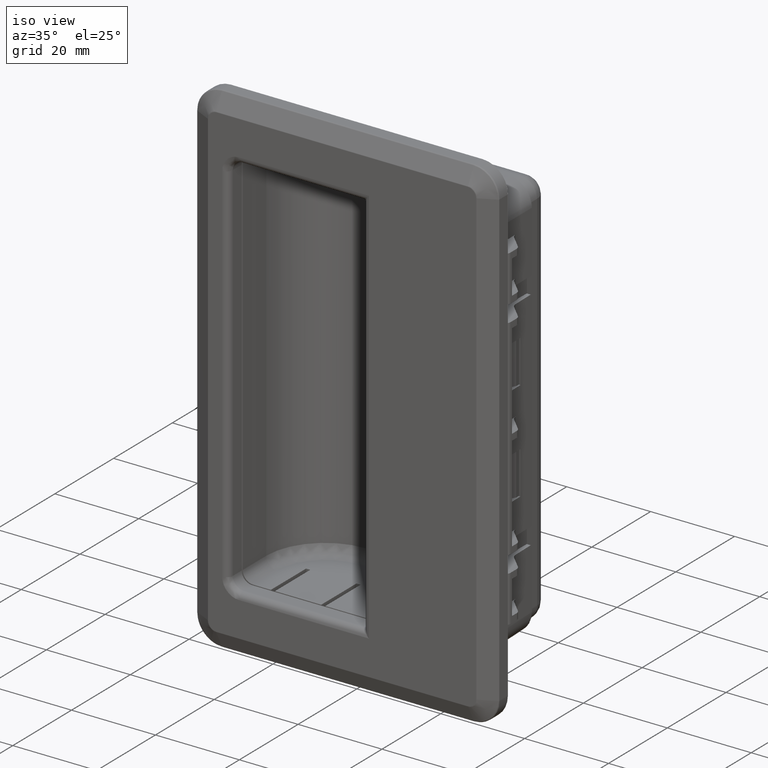
[diagram: clean part render]
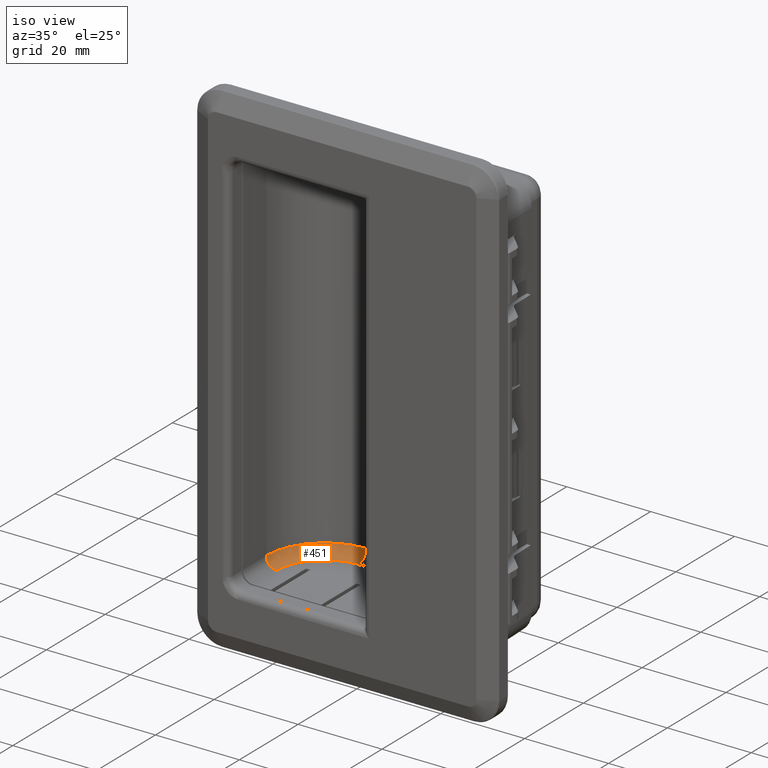
[diagram: same view with one face highlighted and labeled with its STEP entity id]
A machine part, iso view. The second image highlights one B-rep face of the part: STEP entity #451.
In plain terms, the highlighted face is a freeform B-spline surface patch.
Its self-contained STEP definition (entity closure, byte-faithful):
#451=ADVANCED_FACE('',(#5157),#5156,.F.);
#5156=( BOUNDED_SURFACE() B_SPLINE_SURFACE( 2,2,((#13050,#13051,#13052,#13053,#13054),(#13055,#13056,#13057,#13058,#13059),(#13060,#13061,#13062,#13063,#13064),(#13065,#13066,#13067,#13068,#13069),(#13070,#13071,#13072,#13073,#13074),(#13075,#13076,#13077,#13078,#13079),(#13080,#13081,#13082,#13083,#13084)), .UNSPECIFIED.,.T.,.F.,.F.) B_SPLINE_SURFACE_WITH_KNOTS((3,2,2,3),(3,2,3),(0.00000000000E+000,3.33333333333E-001,6.66666666667E-001,1.00000000000E+000),(0.00000000000E+000,5.00000000000E-001,1.00000000000E+000), .UNSPECIFIED. ) GEOMETRIC_REPRESENTATION_ITEM() RATIONAL_B_SPLINE_SURFACE(((1.00000000000E+000,7.07106781187E-001,1.00000000000E+000,7.07106781187E-001,1.00000000000E+000),(5.00000000000E-001,3.53553390593E-001,5.00000000000E-001,3.53553390593E-001,5.00000000000E-001),(1.00000000000E+000,7.07106781187E-001,1.00000000000E+000,7.07106781187E-001,1.00000000000E+000),(5.00000000000E-001,3.53553390593E-001,5.00000000000E-001,3.53553390593E-001,5.00000000000E-001),(1.00000000000E+000,7.07106781187E-001,1.00000000000E+000,7.07106781187E-001,1.00000000000E+000),(5.00000000000E-001,3.53553390593E-001,5.00000000000E-001,3.53553390593E-001,5.00000000000E-001),(1.00000000000E+000,7.07106781187E-001,1.00000000000E+000,7.07106781187E-001,1.00000000000E+000))) REPRESENTATION_ITEM('') SURFACE() );
#5157=FACE_OUTER_BOUND('',#13085,.T.);
#13050=CARTESIAN_POINT('',(8.00000000176E-001,8.00000000000E+000,-4.37999999999E+001));
#13051=CARTESIAN_POINT('',(8.00000000176E-001,8.00000000000E+000,-4.62999999999E+001));
#13052=CARTESIAN_POINT('',(-1.69999999982E+000,8.00000000000E+000,-4.62999999999E+001));
#13053=CARTESIAN_POINT('',(-4.19999999982E+000,8.00000000000E+000,-4.62999999999E+001));
#13054=CARTESIAN_POINT('',(-4.19999999982E+000,8.00000000000E+000,-4.37999999999E+001));
#13055=CARTESIAN_POINT('',(8.00000000176E-001,-1.62487113060E+001,-4.37999999999E+001));
#13056=CARTESIAN_POINT('',(8.00000000176E-001,-1.62487113060E+001,-4.62999999999E+001));
#13057=CARTESIAN_POINT('',(-1.69999999982E+000,-1.19185842870E+001,-4.62999999999E+001));
#13058=CARTESIAN_POINT('',(-4.19999999982E+000,-7.58845726812E+000,-4.62999999999E+001));
#13059=CARTESIAN_POINT('',(-4.19999999982E+000,-7.58845726812E+000,-4.37999999999E+001));
#13060=CARTESIAN_POINT('',(-2.01999999998E+001,-4.12435565298E+000,-4.37999999999E+001));
#13061=CARTESIAN_POINT('',(-2.01999999998E+001,-4.12435565298E+000,-4.62999999999E+001));
#13062=CARTESIAN_POINT('',(-1.89499999998E+001,-1.95929214352E+000,-4.62999999999E+001));
#13063=CARTESIAN_POINT('',(-1.76999999998E+001,2.05771365940E-001,-4.62999999999E+001));
#13064=CARTESIAN_POINT('',(-1.76999999998E+001,2.05771365940E-001,-4.37999999999E+001));
#13065=CARTESIAN_POINT('',(-4.11999999998E+001,8.00000000000E+000,-4.37999999999E+001));
#13066=CARTESIAN_POINT('',(-4.11999999998E+001,8.00000000000E+000,-4.62999999999E+001));
#13067=CARTESIAN_POINT('',(-3.61999999998E+001,8.00000000000E+000,-4.62999999999E+001));
#13068=CARTESIAN_POINT('',(-3.11999999998E+001,8.00000000000E+000,-4.62999999999E+001));
#13069=CARTESIAN_POINT('',(-3.11999999998E+001,8.00000000000E+000,-4.37999999999E+001));
#13070=CARTESIAN_POINT('',(-2.01999999998E+001,2.01243556530E+001,-4.37999999999E+001));
#13071=CARTESIAN_POINT('',(-2.01999999998E+001,2.01243556530E+001,-4.62999999999E+001));
#13072=CARTESIAN_POINT('',(-1.89499999998E+001,1.79592921435E+001,-4.62999999999E+001));
#13073=CARTESIAN_POINT('',(-1.76999999998E+001,1.57942286341E+001,-4.62999999999E+001));
#13074=CARTESIAN_POINT('',(-1.76999999998E+001,1.57942286341E+001,-4.37999999999E+001));
#13075=CARTESIAN_POINT('',(8.00000000176E-001,3.22487113060E+001,-4.37999999999E+001));
#13076=CARTESIAN_POINT('',(8.00000000176E-001,3.22487113060E+001,-4.62999999999E+001));
#13077=CARTESIAN_POINT('',(-1.69999999982E+000,2.79185842870E+001,-4.62999999999E+001));
#13078=CARTESIAN_POINT('',(-4.19999999982E+000,2.35884572681E+001,-4.62999999999E+001));
#13079=CARTESIAN_POINT('',(-4.19999999982E+000,2.35884572681E+001,-4.37999999999E+001));
#13080=CARTESIAN_POINT('',(8.00000000176E-001,8.00000000000E+000,-4.37999999999E+001));
#13081=CARTESIAN_POINT('',(8.00000000176E-001,8.00000000000E+000,-4.62999999999E+001));
#13082=CARTESIAN_POINT('',(-1.69999999982E+000,8.00000000000E+000,-4.62999999999E+001));
#13083=CARTESIAN_POINT('',(-4.19999999982E+000,8.00000000000E+000,-4.62999999999E+001));
#13084=CARTESIAN_POINT('',(-4.19999999982E+000,8.00000000000E+000,-4.37999999999E+001));
#13085=EDGE_LOOP('',(#21109,#21110,#21111,#21112));
#21109=ORIENTED_EDGE('',*,*,#25360,.F.);
#21110=ORIENTED_EDGE('',*,*,#25341,.T.);
#21111=ORIENTED_EDGE('',*,*,#25361,.T.);
#21112=ORIENTED_EDGE('',*,*,#25328,.T.);
#25328=EDGE_CURVE('',#37310,#37351,#37358,.T.);
#25341=EDGE_CURVE('',#37447,#37440,#37448,.T.);
#25360=EDGE_CURVE('',#37447,#37351,#37576,.T.);
#25361=EDGE_CURVE('',#37440,#37310,#37582,.T.);
#37310=VERTEX_POINT('',#48528);
#37351=VERTEX_POINT('',#48555);
#37358=CIRCLE('',#48562,1.40000000000E+001);
#37440=VERTEX_POINT('',#48606);
#37447=VERTEX_POINT('',#48610);
#37448=CIRCLE('',#48614,1.15000000000E+001);
#37576=CIRCLE('',#48686,2.50000000000E+000);
#37582=CIRCLE('',#48690,2.50000000000E+000);
#48528=CARTESIAN_POINT('',(-1.31999999998E+001,2.20000000000E+001,-4.37999999999E+001));
#48555=CARTESIAN_POINT('',(-2.71999999998E+001,7.99999999984E+000,-4.37999999999E+001));
#48559=CARTESIAN_POINT('',(-1.31999999998E+001,8.00000000000E+000,-4.37999999999E+001));
#48560=DIRECTION('',(0.00000000000E+000,-0.00000000000E+000,1.00000000000E+000));
#48561=DIRECTION('',(1.83690953073E-016,1.00000000000E+000,0.00000000000E+000));
#48562=AXIS2_PLACEMENT_3D('',#48559,#48560,#48561);
#48606=CARTESIAN_POINT('',(-1.31999999998E+001,1.95000000000E+001,-4.62999999999E+001));
#48610=CARTESIAN_POINT('',(-2.46999999998E+001,7.99999999986E+000,-4.62999999999E+001));
#48611=CARTESIAN_POINT('',(-1.31999999998E+001,8.00000000000E+000,-4.62999999999E+001));
#48612=DIRECTION('',(0.00000000000E+000,0.00000000000E+000,-1.00000000000E+000));
#48613=DIRECTION('',(1.00000000000E+000,-0.00000000000E+000,-0.00000000000E+000));
#48614=AXIS2_PLACEMENT_3D('',#48611,#48612,#48613);
#48683=CARTESIAN_POINT('',(-2.46999999998E+001,7.99999999986E+000,-4.37999999999E+001));
#48684=DIRECTION('',(-1.18636440813E-011,1.00000000000E+000,0.00000000000E+000));
#48685=DIRECTION('',(1.00000000000E+000,1.18636440813E-011,-0.00000000000E+000));
#48686=AXIS2_PLACEMENT_3D('',#48683,#48684,#48685);
#48687=CARTESIAN_POINT('',(-1.31999999998E+001,1.95000000000E+001,-4.37999999999E+001));
#48688=DIRECTION('',(1.00000000000E+000,0.00000000000E+000,-0.00000000000E+000));
#48689=DIRECTION('',(-0.00000000000E+000,-0.00000000000E+000,-1.00000000000E+000));
#48690=AXIS2_PLACEMENT_3D('',#48687,#48688,#48689);